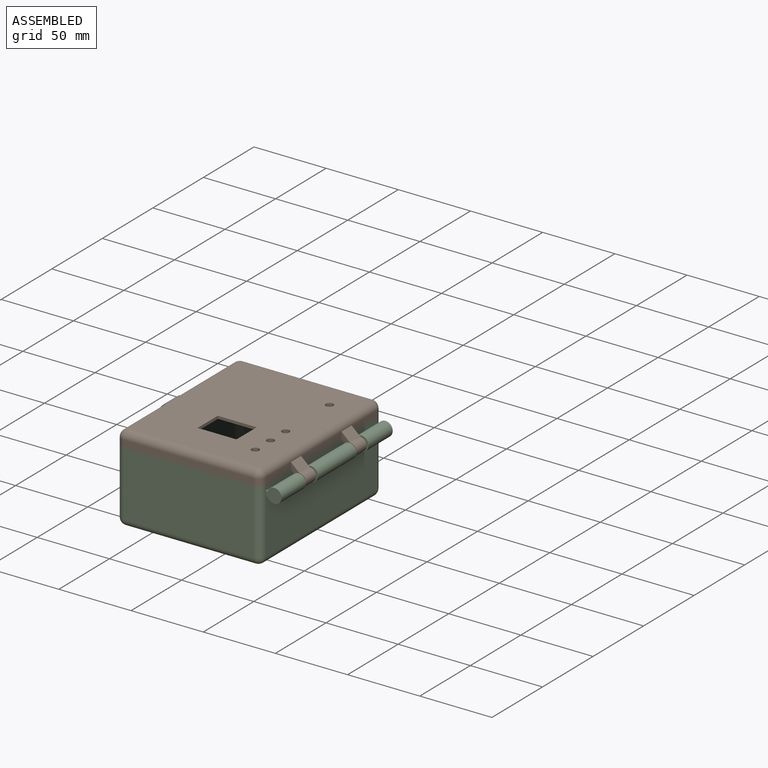
[diagram: assembled view]
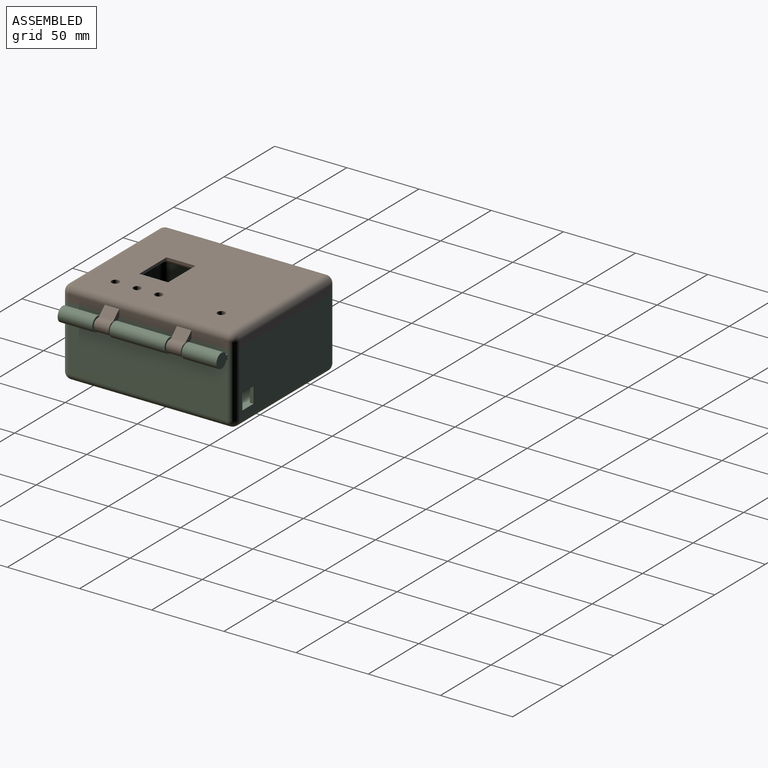
[diagram: assembled view, second angle]
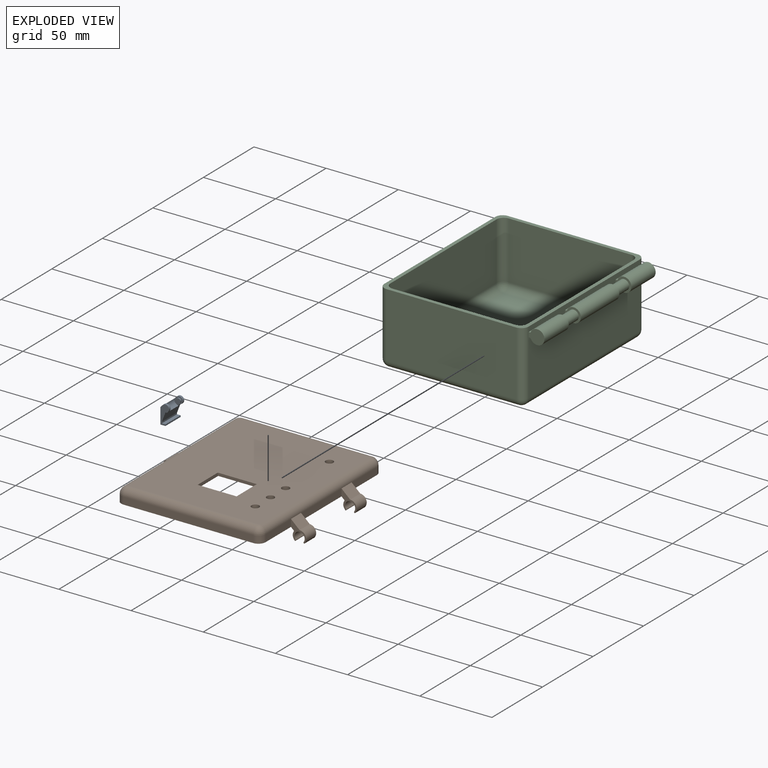
[diagram: exploded view]
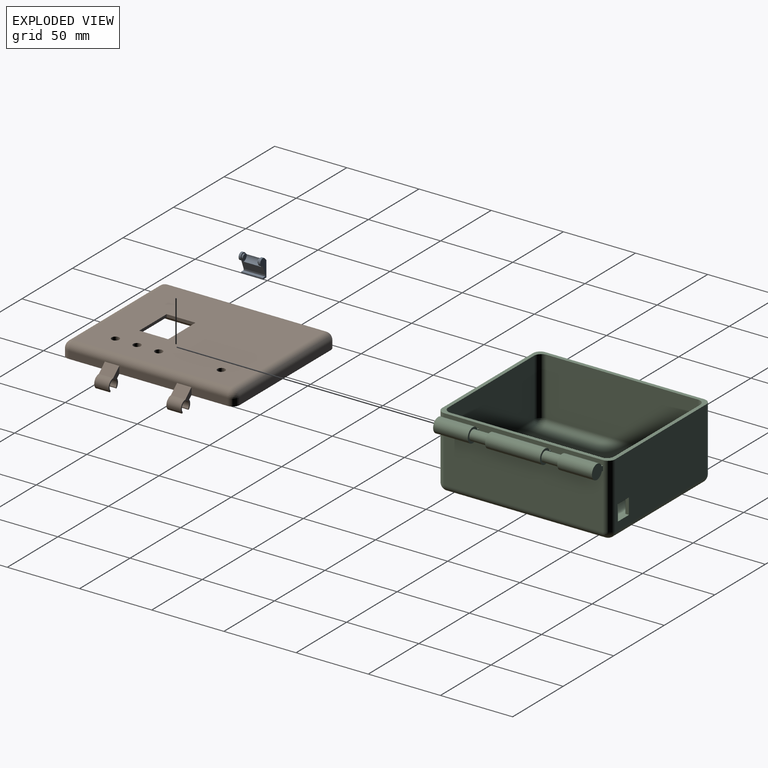
[diagram: exploded view, second angle]
ASSEMBLY  parts=3 mates=4
PART A: 18 faces, bbox 6x13.5x15 mm
  f0: plane 15x1.77mm, normal (0.71,0.71,0), area 8.1mm2, adj f2,f3,f8,f9,f10,f11,f12,f13
  f1: plane 15x6.5mm, normal (-0.93,-0.36,0), area 91.9mm2, adj f2,f3,f4,f9,f10,f11,f12,f13
  f2: cylinder r=2.5mm len=5mm, axis (0,0,-1), area 14.7mm2, adj f0,f1,f10,f12
  f3: cylinder r=2.5mm len=5mm, axis (0,0,-1), area 14.7mm2, adj f0,f1,f9,f13
  f4: plane 15x1mm, normal (-1,0,0), area 15mm2, adj f1,f5,f9,f10
  f5: plane 15x2.5mm, normal (0,1,0), area 37.5mm2, adj f4,f6,f9,f10
  f6: plane 15x1mm, normal (-1,0,0), area 15mm2, adj f5,f7,f9,f10
  f7: plane 15x3.54mm, normal (0,-1,0), area 53mm2, adj f6,f8,f9,f10
  f8: plane 15x11mm, normal (1,0,0), area 165mm2, adj f0,f7,f9,f10
  f9: plane 13.5x6.04mm, normal (0,0,1), area 43.7mm2, adj f0,f1,f3,f4,f5,f6,f7,f8
  f10: plane 13.5x6.04mm, normal (0,0,-1), area 43.7mm2, adj f0,f1,f2,f4,f5,f6,f7,f8
  f11: cylinder r=3.5mm len=12mm, axis (0,0,1), area 61.9mm2, adj f0,f1,f12,f13
  f12: plane 6x5.98mm, normal (0,0,1), area 15.2mm2, adj f0,f1,f2,f11,f14
  f13: plane 6x5.98mm, normal (0,0,-1), area 16.8mm2, adj f0,f1,f3,f11,f16
  f14: cylinder r=1.75mm len=3.5mm, axis (0,0,-1), area 11mm2, adj f12,f15
  f15: plane 3.5x3.5mm, normal (0,0,1), area 9.6mm2, adj f14
  f16: cylinder r=1.6mm len=3.2mm, axis (0,0,1), area 10.1mm2, adj f13,f17
  f17: plane 3.2x3.2mm, normal (0,0,-1), area 8mm2, adj f16
PART B: 70 faces, bbox 115.5x120x18 mm
  f0: plane 103x83mm, normal (0,0,-1), area 7245.4mm2, adj f18,f19,f20,f21,f52,f63,f64,f65
  f1: plane 27x2mm, normal (0,-1,0), area 54mm2, adj f2,f4,f5,f62
  f2: plane 20x2mm, normal (1,0,0), area 40mm2, adj f1,f3,f5,f62
  f3: plane 27x2mm, normal (0,1,0), area 54mm2, adj f2,f4,f5,f62
  f4: plane 20x2mm, normal (-1,0,0), area 40mm2, adj f1,f3,f5,f62
  f5: plane 110x90mm, normal (0,0,1), area 9271.8mm2, adj f1,f2,f3,f4,f25,f26,f30,f31
  f6: plane 49x5mm, normal (-1,0,0), area 245mm2, adj f17,f24,f25,f45
  f7: cylinder r=4.5mm len=10mm, axis (0,1,0), area 67.1mm2, adj f8,f39,f43,f59
  f8: plane 10x2.16mm, normal (-0.67,0,-0.74), area 29.1mm2, adj f7,f17,f39,f43
  f9: plane 10x6mm, normal (0.67,0,0.74), area 80.9mm2, adj f10,f31,f39,f43
  f10: cylinder r=4.5mm len=10mm, axis (0,1,0), area 104.8mm2, adj f9,f39,f43,f58
  f11: cylinder r=3.5mm len=10mm, axis (0,1,0), area 154.4mm2, adj f39,f43,f58,f59
  f12: plane 25x5mm, normal (1,0,0), area 125mm2, adj f17,f31,f33,f39
  f13: plane 90x5mm, normal (0,-1,0), area 450mm2, adj f17,f24,f30,f33
  f14: plane 25x5mm, normal (1,0,0), area 125mm2, adj f17,f27,f31,f40
  f15: plane 90x5mm, normal (0,1,0), area 450mm2, adj f17,f22,f26,f27
  f16: plane 49x5mm, normal (-1,0,0), area 245mm2, adj f17,f22,f25,f44
  f17: plane 120x103mm, normal (0,0,-1), area 1505.5mm2, adj f6,f8,f12,f13,f14,f15,f16,f18
  f18: cylinder r=5mm len=93mm, axis (1,0,0), area 701.9mm2, adj f0,f17,f19,f20
  f19: cylinder r=5mm len=113mm, axis (0,1,0), area 859mm2, adj f0,f17,f18,f21
  f20: cylinder r=5mm len=113mm, axis (0,-1,0), area 859mm2, adj f0,f17,f18,f21
  f21: cylinder r=5mm len=93mm, axis (-1,0,0), area 701.9mm2, adj f0,f17,f19,f20
  f22: cylinder r=5mm len=5mm, axis (0,0,1), area 39.3mm2, adj f15,f16,f17,f23
  f23: sphere r=5mm, area 39.3mm2, adj f22,f25,f26
  f24: cylinder r=5mm len=5mm, axis (0,0,-1), area 39.3mm2, adj f6,f13,f17,f28
  f25: cylinder r=5mm len=110mm, axis (0,1,0), area 863.9mm2, adj f5,f6,f16,f23,f28,f46
  f26: cylinder r=5mm len=90mm, axis (1,0,0), area 706.9mm2, adj f5,f15,f23,f29
  f27: cylinder r=5mm len=5mm, axis (0,0,-1), area 39.3mm2, adj f14,f15,f17,f29
  f28: sphere r=5mm, area 39.3mm2, adj f24,f25,f30
  f29: sphere r=5mm, area 39.3mm2, adj f26,f27,f31
  f30: cylinder r=5mm len=90mm, axis (-1,0,0), area 706.9mm2, adj f5,f13,f28,f32
  f31: cylinder r=5mm len=110mm, axis (0,-1,0), area 863.9mm2, adj f5,f9,f12,f14,f29,f32,f36,f41
  f32: sphere r=5mm, area 39.3mm2, adj f30,f31,f33
  f33: cylinder r=5mm len=5mm, axis (0,0,1), area 39.3mm2, adj f12,f13,f17,f32
  f34: cylinder r=4.5mm len=10mm, axis (0,1,0), area 67.1mm2, adj f35,f40,f42,f56
  f35: plane 10x2.16mm, normal (-0.67,0,-0.74), area 29.1mm2, adj f17,f34,f40,f42
  f36: plane 10x6mm, normal (0.67,0,0.74), area 80.9mm2, adj f31,f37,f40,f42
  f37: cylinder r=4.5mm len=10mm, axis (0,1,0), area 104.8mm2, adj f36,f40,f42,f57
  f38: cylinder r=3.5mm len=10mm, axis (0,1,0), area 154.4mm2, adj f40,f42,f56,f57
  f39: plane 13.03x10.49mm, normal (0,-1,0), area 40.2mm2, adj f7,f8,f9,f10,f11,f12,f58,f59
  f40: plane 13.03x10.49mm, normal (0,1,0), area 40.2mm2, adj f14,f34,f35,f36,f37,f38,f56,f57
  f41: plane 40x5mm, normal (1,0,0), area 200mm2, adj f17,f31,f42,f43
  f42: plane 13.03x10.49mm, normal (0,-1,0), area 40.2mm2, adj f34,f35,f36,f37,f38,f41,f56,f57
  f43: plane 13.03x10.49mm, normal (0,1,0), area 40.2mm2, adj f7,f8,f9,f10,f11,f41,f58,f59
  f44: plane 5x5mm, normal (0,1,0), area 13.7mm2, adj f16,f17,f46,f47,f48,f60,f61
  f45: plane 5x5mm, normal (0,-1,0), area 13.7mm2, adj f6,f17,f46,f47,f50,f60,f61
  f46: plane 12x3mm, normal (0,0,1), area 36mm2, adj f25,f44,f45,f61
  f47: plane 12x1mm, normal (-1,0,0), area 12mm2, adj f44,f45,f60,f61
  f48: cylinder r=1.75mm len=3.5mm, axis (0,1,0), area 33mm2, adj f44,f49
  f49: plane 3.5x3.5mm, normal (0,1,0), area 9.6mm2, adj f48
  f50: cylinder r=1.75mm len=3.5mm, axis (0,-1,0), area 33mm2, adj f45,f51
  f51: plane 3.5x3.5mm, normal (0,-1,0), area 9.6mm2, adj f50
  f52: cylinder r=2.65mm len=5.3mm, axis (0,0,1), area 83.3mm2, adj f0,f5
  f53: cylinder r=2.65mm len=5.3mm, axis (0,0,1), area 66.6mm2, adj f5,f67
  f54: cylinder r=2.65mm len=5.3mm, axis (0,0,1), area 66.6mm2, adj f5,f68
  f55: cylinder r=2.65mm len=5.3mm, axis (0,0,1), area 66.6mm2, adj f5,f69
  f56: cylinder r=0.6mm len=10mm, axis (0,1,0), area 12.7mm2, adj f34,f38,f40,f42
  f57: cylinder r=0.6mm len=10mm, axis (0,1,0), area 12.7mm2, adj f37,f38,f40,f42
  f58: cylinder r=0.6mm len=10mm, axis (0,1,0), area 12.7mm2, adj f10,f11,f39,f43
  f59: cylinder r=0.6mm len=10mm, axis (0,1,0), area 12.7mm2, adj f7,f11,f39,f43
  f60: cylinder r=2mm len=12mm, axis (0,-1,0), area 37.7mm2, adj f17,f44,f45,f47
  f61: cylinder r=2mm len=12mm, axis (0,-1,0), area 37.7mm2, adj f44,f45,f46,f47
  f62: plane 28x28mm, normal (0,0,-1), area 244mm2, adj f1,f2,f3,f4,f63,f64,f65,f66
  f63: plane 34x3mm, normal (0.71,0,-0.71), area 131.5mm2, adj f0,f62,f64,f65
  f64: plane 34x3mm, normal (0,-0.71,-0.71), area 131.5mm2, adj f0,f62,f63,f66
  f65: plane 34x3mm, normal (0,0.71,-0.71), area 131.5mm2, adj f0,f62,f63,f66
  f66: plane 34x3mm, normal (-0.71,0,-0.71), area 131.5mm2, adj f0,f62,f64,f65
  f67: cone r=3.65mm half-angle=45deg, axis (0,0,-1), area 28mm2, adj f0,f53
  f68: cone r=3.65mm half-angle=45deg, axis (0,0,-1), area 28mm2, adj f0,f54
  f69: cone r=3.65mm half-angle=45deg, axis (0,0,-1), area 28mm2, adj f0,f55
PART C: 61 faces, bbox 116x120x50 mm
  f0: plane 90x45mm, normal (0,1,0), area 3929mm2, adj f9,f19,f21,f22,f57,f58,f59,f60
  f1: plane 6x5mm, normal (0,1,0), area 17.5mm2, adj f12,f54,f55,f56
  f2: plane 6x5mm, normal (0,-1,0), area 17.5mm2, adj f12,f54,f55,f56
  f3: plane 24x1.28mm, normal (0,0,1), area 30.7mm2, adj f5,f11,f46,f53
  f4: plane 24x1.28mm, normal (0,0,-1), area 30.7mm2, adj f5,f11,f46,f53
  f5: cylinder r=5mm len=24mm, axis (0,1,0), area 673.6mm2, adj f3,f4,f46,f53
  f6: plane 38x1.28mm, normal (0,0,1), area 48.5mm2, adj f8,f11,f49,f52
  f7: plane 38x1.28mm, normal (0,0,-1), area 48.5mm2, adj f8,f11,f49,f52
  f8: cylinder r=5mm len=38mm, axis (0,1,0), area 1066.6mm2, adj f6,f7,f49,f52
  f9: plane 120x100mm, normal (0,0,1), area 1075mm2, adj f0,f10,f11,f12,f14,f15,f16,f17
  f10: plane 90x45mm, normal (0,-1,0), area 4050mm2, adj f9,f24,f28,f30
  f11: plane 110x45mm, normal (1,0,0), area 4667.5mm2, adj f3,f4,f6,f7,f9,f21,f27,f30
  f12: plane 110x45mm, normal (-1,0,0), area 4878mm2, adj f1,f2,f9,f19,f23,f24,f55,f56
  f13: plane 110x90mm, normal (0,0,-1), area 9900mm2, adj f22,f23,f27,f28
  f14: plane 85x40mm, normal (0,1,0), area 3400mm2, adj f9,f33,f39,f42
  f15: plane 105x40mm, normal (-1,0,0), area 4200mm2, adj f9,f36,f40,f42
  f16: plane 85x40mm, normal (0,-1,0), area 3279mm2, adj f9,f31,f35,f36,f57,f58
  f17: plane 105x40mm, normal (1,0,0), area 4200mm2, adj f9,f31,f33,f34
  f18: plane 105x85mm, normal (0,0,1), area 8925mm2, adj f34,f35,f39,f40
  f19: cylinder r=5mm len=45mm, axis (0,0,1), area 353.4mm2, adj f0,f9,f12,f20
  f20: sphere r=5mm, area 39.3mm2, adj f19,f22,f23
  f21: cylinder r=5mm len=45mm, axis (0,0,-1), area 353.4mm2, adj f0,f9,f11,f25,f47
  f22: cylinder r=5mm len=90mm, axis (-1,0,0), area 706.9mm2, adj f0,f13,f20,f25
  f23: cylinder r=5mm len=110mm, axis (0,-1,0), area 863.9mm2, adj f12,f13,f20,f26
  f24: cylinder r=5mm len=45mm, axis (0,0,-1), area 353.4mm2, adj f9,f10,f12,f26
  f25: sphere r=5mm, area 39.3mm2, adj f21,f22,f27
  f26: sphere r=5mm, area 39.3mm2, adj f23,f24,f28
  f27: cylinder r=5mm len=110mm, axis (0,1,0), area 863.9mm2, adj f11,f13,f25,f29
  f28: cylinder r=5mm len=90mm, axis (1,0,0), area 706.9mm2, adj f10,f13,f26,f29
  f29: sphere r=5mm, area 39.3mm2, adj f27,f28,f30
  f30: cylinder r=5mm len=45mm, axis (0,0,1), area 353.4mm2, adj f9,f10,f11,f29,f46
  f31: cylinder r=5mm len=40mm, axis (0,0,1), area 314.2mm2, adj f9,f16,f17,f32
  f32: sphere r=5mm, area 39.3mm2, adj f31,f34,f35
  f33: cylinder r=5mm len=40mm, axis (0,0,-1), area 314.2mm2, adj f9,f14,f17,f37
  f34: cylinder r=5mm len=105mm, axis (0,-1,0), area 824.7mm2, adj f17,f18,f32,f37
  f35: cylinder r=5mm len=85mm, axis (-1,0,0), area 667.6mm2, adj f16,f18,f32,f38,f59
  f36: cylinder r=5mm len=40mm, axis (0,0,-1), area 314.2mm2, adj f9,f15,f16,f38,f60
  f37: sphere r=5mm, area 39.3mm2, adj f33,f34,f39
  f38: sphere r=5mm, area 39.3mm2, adj f35,f36,f40
  f39: cylinder r=5mm len=85mm, axis (1,0,0), area 667.6mm2, adj f14,f18,f37,f41
  f40: cylinder r=5mm len=105mm, axis (0,1,0), area 824.7mm2, adj f15,f18,f38,f41
  f41: sphere r=5mm, area 39.3mm2, adj f39,f40,f42
  f42: cylinder r=5mm len=40mm, axis (0,0,1), area 314.2mm2, adj f9,f14,f15,f41
  f43: plane 24x1.28mm, normal (0,0,1), area 30.7mm2, adj f11,f45,f47,f50
  f44: plane 24x1.28mm, normal (0,0,-1), area 30.7mm2, adj f11,f45,f47,f50
  f45: cylinder r=5mm len=24mm, axis (0,1,0), area 673.6mm2, adj f43,f44,f47,f50
  f46: plane 11x10mm, normal (0,-1,0), area 82.1mm2, adj f3,f4,f5,f30
  f47: plane 11x10mm, normal (0,1,0), area 82.1mm2, adj f21,f43,f44,f45
  f48: cylinder r=3.5mm len=12mm, axis (0,1,0), area 263.9mm2, adj f49,f50
  f49: plane 11x10mm, normal (0,1,0), area 43.6mm2, adj f6,f7,f8,f11,f48
  f50: plane 11x10mm, normal (0,-1,0), area 43.6mm2, adj f11,f43,f44,f45,f48
  f51: cylinder r=3.5mm len=12mm, axis (0,-1,0), area 263.9mm2, adj f52,f53
  f52: plane 11x10mm, normal (0,-1,0), area 43.6mm2, adj f6,f7,f8,f11,f51
  f53: plane 11x10mm, normal (0,1,0), area 43.6mm2, adj f3,f4,f5,f11,f51
  f54: plane 12x1mm, normal (-1,0,0), area 12mm2, adj f1,f2,f55,f56
  f55: plane 12x5mm, normal (-0.71,0,0.71), area 84.9mm2, adj f1,f2,f12,f54
  f56: plane 12x5mm, normal (0,0,-1), area 60mm2, adj f1,f2,f12,f54
  f57: plane 11x2.5mm, normal (1,0,0), area 27.5mm2, adj f0,f16,f58,f59
  f58: plane 11x2.5mm, normal (0,0,-1), area 27.5mm2, adj f0,f16,f57,f60
  f59: plane 11x2.5mm, normal (0,0,1), area 27.5mm2, adj f0,f35,f57,f60
  f60: plane 11x2.5mm, normal (-1,0,0), area 27.5mm2, adj f0,f36,f58,f59
PLACE A rot(axis=(0,0.71,0.71),180deg) t=(-71.81,-13.39,14.66)mm
PLACE B rot(axis=(0,-1,0),0deg) t=(-19.13,-5.89,12.17)mm
PLACE C t=(-19.13,-5.89,-37.82)mm
MATE planar B.f13 <-> C.f10  axis (0,-1,0) through (-19.13,-65.89,14.67)mm
MATE cylindrical A.f16 <-> B.f48  axis (0,1,0) through (-71.81,-0.39,14.66)mm
MATE cylindrical B.f11 <-> C.f51  axis (0,1,0) through (36.87,19.11,7.18)mm
MATE planar A.f2 <-> B.f44  axis (0,-1,0) through (-71.81,0.11,14.66)mm
